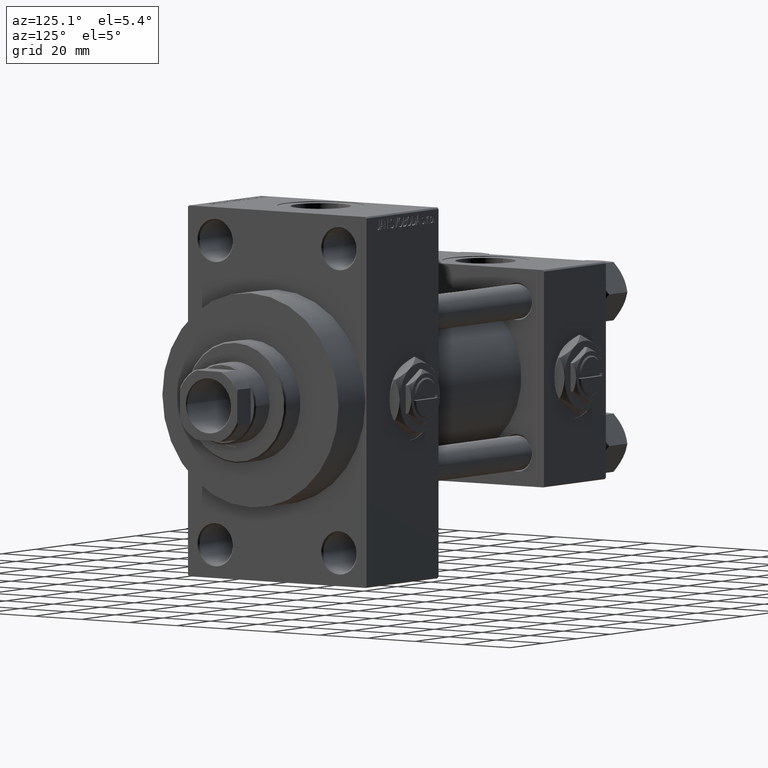
[diagram: clean part render]
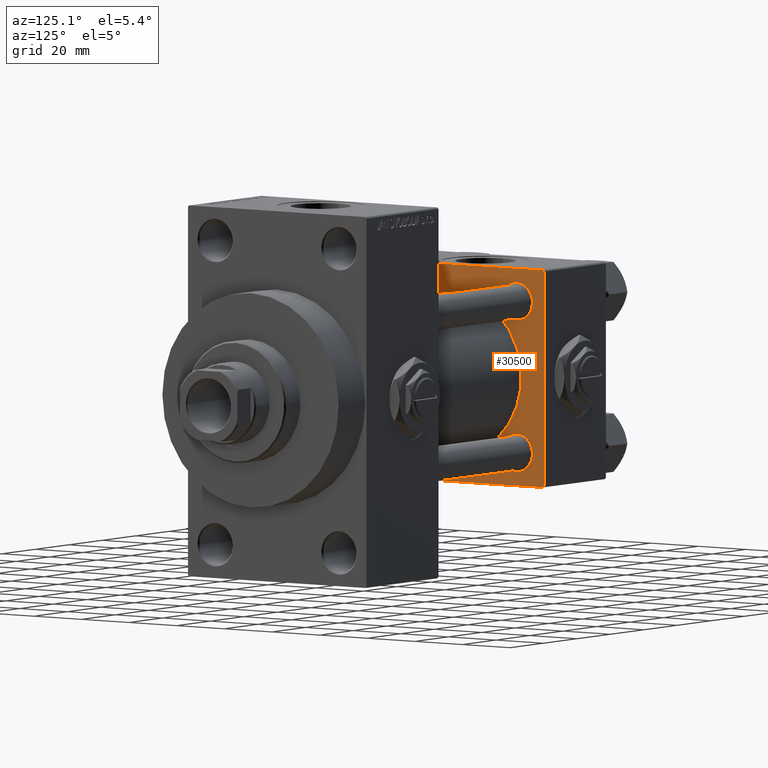
[diagram: same view with one face highlighted and labeled with its STEP entity id]
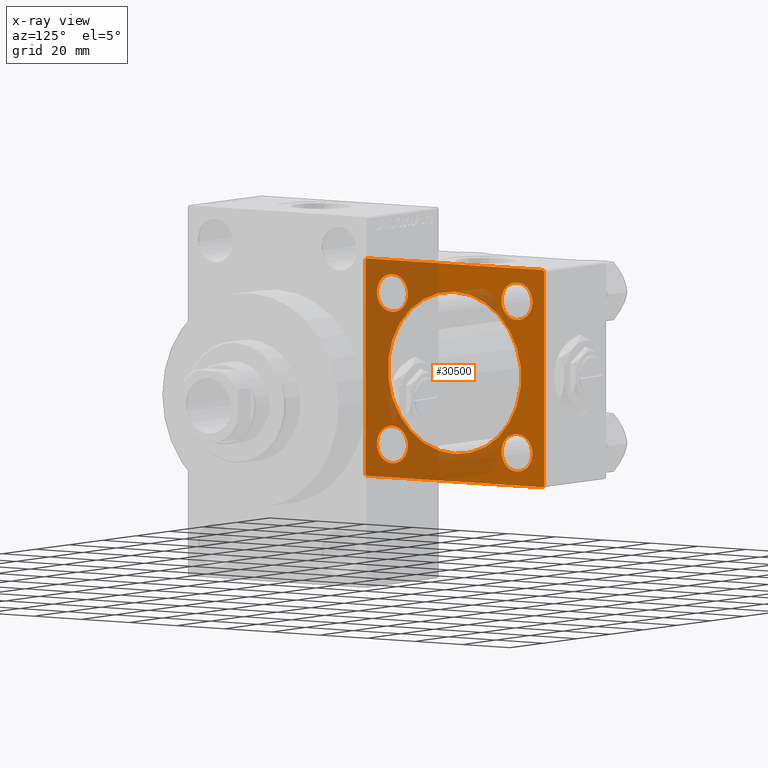
[diagram: x-ray of the same camera — body ghosted, the highlighted face saturated]
A machine part, auxiliary view. The second image highlights one B-rep face of the part: STEP entity #30500.
The next image is the same camera in x-ray: the body ghosted, the highlighted face saturated — about 55% of this face is hidden behind the body in this view.
In plain terms, the highlighted planar face has unit normal (-1, 0, 0).
Its self-contained STEP definition (entity closure, byte-faithful):
#254 = EDGE_CURVE ( 'NONE', #46438, #34888, #38169, .T. ) ;
#601 = DIRECTION ( 'NONE',  ( 0.000000000000000000, 0.000000000000000000, 1.000000000000000000 ) ) ;
#1524 = AXIS2_PLACEMENT_3D ( 'NONE', #34920, #11728, #30686 ) ;
#1665 = CARTESIAN_POINT ( 'NONE',  ( 37.00000000000000000, 37.49999999999999289, -36.99999999999998579 ) ) ;
#1704 = ORIENTED_EDGE ( 'NONE', *, *, #13750, .T. ) ;
#2024 = AXIS2_PLACEMENT_3D ( 'NONE', #26713, #22973, #26958 ) ;
#2069 = DIRECTION ( 'NONE',  ( -1.000000000000000000, 0.000000000000000000, -0.000000000000000000 ) ) ;
#2194 = CIRCLE ( 'NONE', #19733, 6.500000000000002665 ) ;
#2397 = EDGE_CURVE ( 'NONE', #4331, #28512, #20771, .T. ) ;
#2564 = CARTESIAN_POINT ( 'NONE',  ( 37.00000000000000000, 26.14999999999999858, 32.65000000000001279 ) ) ;
#2976 = VECTOR ( 'NONE', #47858, 1000.000000000000000 ) ;
#3983 = VERTEX_POINT ( 'NONE', #22808 ) ;
#4331 = VERTEX_POINT ( 'NONE', #46150 ) ;
#4739 = DIRECTION ( 'NONE',  ( 0.000000000000000000, 0.000000000000000000, 1.000000000000000000 ) ) ;
#4988 = CARTESIAN_POINT ( 'NONE',  ( 37.00000000000000000, 36.99999999999997868, -37.50000000000000000 ) ) ;
#5083 = CARTESIAN_POINT ( 'NONE',  ( 37.00000000000000000, 26.14999999999999858, 19.64999999999999858 ) ) ;
#5646 = AXIS2_PLACEMENT_3D ( 'NONE', #31441, #11744, #4739 ) ;
#5773 = VERTEX_POINT ( 'NONE', #8104 ) ;
#5812 = CARTESIAN_POINT ( 'NONE',  ( 37.00000000000000000, -26.14999999999999147, 26.15000000000000924 ) ) ;
#5977 = CIRCLE ( 'NONE', #2024, 6.500000000000002665 ) ;
#6157 = ORIENTED_EDGE ( 'NONE', *, *, #21304, .T. ) ;
#6958 = VECTOR ( 'NONE', #9824, 1000.000000000000114 ) ;
#7467 = VERTEX_POINT ( 'NONE', #17833 ) ;
#7866 = AXIS2_PLACEMENT_3D ( 'NONE', #46010, #23599, #15622 ) ;
#8049 = DIRECTION ( 'NONE',  ( -0.000000000000000000, 0.000000000000000000, 1.000000000000000000 ) ) ;
#8104 = CARTESIAN_POINT ( 'NONE',  ( 37.00000000000000000, 37.49999999999999289, 37.00000000000000000 ) ) ;
#8339 = EDGE_CURVE ( 'NONE', #25199, #24278, #17465, .T. ) ;
#8554 = EDGE_CURVE ( 'NONE', #3983, #32130, #26888, .T. ) ;
#9064 = DIRECTION ( 'NONE',  ( 0.000000000000000000, 0.000000000000000000, 1.000000000000000000 ) ) ;
#9313 = CARTESIAN_POINT ( 'NONE',  ( 37.00000000000000000, -37.00000000000002132, -37.50000000000000711 ) ) ;
#9381 = AXIS2_PLACEMENT_3D ( 'NONE', #42935, #47411, #13277 ) ;
#9572 = CARTESIAN_POINT ( 'NONE',  ( 37.00000000000000000, 36.99999999999999289, 37.50000000000000000 ) ) ;
#9824 = DIRECTION ( 'NONE',  ( 0.000000000000000000, -0.7071067811865474617, 0.7071067811865474617 ) ) ;
#10074 = VECTOR ( 'NONE', #11050, 1000.000000000000000 ) ;
#10298 = ORIENTED_EDGE ( 'NONE', *, *, #38020, .T. ) ;
#10505 = CARTESIAN_POINT ( 'NONE',  ( 37.00000000000000711, 8.269258236473784371E-16, -28.00000000000000000 ) ) ;
#10587 = CARTESIAN_POINT ( 'NONE',  ( 37.00000000000000000, 26.14999999999999858, -26.15000000000000213 ) ) ;
#10861 = CARTESIAN_POINT ( 'NONE',  ( 37.00000000000000000, -37.50000000000000711, 36.99999999999999289 ) ) ;
#10950 = VECTOR ( 'NONE', #24522, 1000.000000000000000 ) ;
#11050 = DIRECTION ( 'NONE',  ( 0.000000000000000000, 9.251858538542971581E-17, -1.000000000000000000 ) ) ;
#11121 = ORIENTED_EDGE ( 'NONE', *, *, #21208, .T. ) ;
#11575 = CARTESIAN_POINT ( 'NONE',  ( 37.00000000000000000, -26.14999999999999147, 26.15000000000000924 ) ) ;
#11728 = DIRECTION ( 'NONE',  ( -1.000000000000000000, 0.000000000000000000, -0.000000000000000000 ) ) ;
#11744 = DIRECTION ( 'NONE',  ( 1.000000000000000000, -0.000000000000000000, 0.000000000000000000 ) ) ;
#12530 = DIRECTION ( 'NONE',  ( -1.000000000000000000, 0.000000000000000000, -0.000000000000000000 ) ) ;
#12670 = CIRCLE ( 'NONE', #1524, 6.500000000000008882 ) ;
#12805 = AXIS2_PLACEMENT_3D ( 'NONE', #5812, #2069, #9064 ) ;
#13183 = VERTEX_POINT ( 'NONE', #18938 ) ;
#13277 = DIRECTION ( 'NONE',  ( 0.000000000000000000, 0.000000000000000000, 1.000000000000000000 ) ) ;
#13750 = EDGE_CURVE ( 'NONE', #28512, #4331, #40914, .T. ) ;
#14209 = EDGE_CURVE ( 'NONE', #25199, #46200, #35573, .T. ) ;
#14671 = VECTOR ( 'NONE', #28598, 1000.000000000000114 ) ;
#14987 = VECTOR ( 'NONE', #33177, 1000.000000000000000 ) ;
#15622 = DIRECTION ( 'NONE',  ( 0.000000000000000000, 0.000000000000000000, 1.000000000000000000 ) ) ;
#15777 = FACE_BOUND ( 'NONE', #28850, .T. ) ;
#16591 = EDGE_CURVE ( 'NONE', #24329, #13183, #5977, .T. ) ;
#17465 = LINE ( 'NONE', #36403, #2976 ) ;
#17544 = ORIENTED_EDGE ( 'NONE', *, *, #29374, .T. ) ;
#17833 = CARTESIAN_POINT ( 'NONE',  ( 37.00000000000000000, -37.50000000000000000, -37.00000000000003553 ) ) ;
#17853 = AXIS2_PLACEMENT_3D ( 'NONE', #11575, #37770, #601 ) ;
#17966 = CARTESIAN_POINT ( 'NONE',  ( 37.00000000000000000, 37.49999999999999289, 37.50000000000000000 ) ) ;
#18754 = ORIENTED_EDGE ( 'NONE', *, *, #40864, .T. ) ;
#18938 = CARTESIAN_POINT ( 'NONE',  ( 37.00000000000000000, 26.14999999999999858, -32.65000000000000568 ) ) ;
#19030 = FACE_BOUND ( 'NONE', #25505, .T. ) ;
#19188 = ORIENTED_EDGE ( 'NONE', *, *, #8339, .F. ) ;
#19283 = FACE_BOUND ( 'NONE', #20104, .T. ) ;
#19344 = EDGE_CURVE ( 'NONE', #23357, #7467, #30496, .T. ) ;
#19733 = AXIS2_PLACEMENT_3D ( 'NONE', #10587, #40497, #22291 ) ;
#20064 = CARTESIAN_POINT ( 'NONE',  ( 37.00000000000000000, -37.00000000000000711, 37.49999999999999289 ) ) ;
#20103 = EDGE_LOOP ( 'NONE', ( #10298, #42705 ) ) ;
#20104 = EDGE_LOOP ( 'NONE', ( #18754, #26157 ) ) ;
#20506 = CARTESIAN_POINT ( 'NONE',  ( 37.00000000000000000, 26.14999999999999858, 26.15000000000000213 ) ) ;
#20771 = CIRCLE ( 'NONE', #12805, 6.499999999999981348 ) ;
#20896 = DIRECTION ( 'NONE',  ( -1.000000000000000000, 0.000000000000000000, -0.000000000000000000 ) ) ;
#21208 = EDGE_CURVE ( 'NONE', #7467, #24278, #42718, .T. ) ;
#21304 = EDGE_CURVE ( 'NONE', #5773, #44537, #47694, .T. ) ;
#22166 = VERTEX_POINT ( 'NONE', #20064 ) ;
#22291 = DIRECTION ( 'NONE',  ( 0.000000000000000000, 0.000000000000000000, 1.000000000000000000 ) ) ;
#22362 = EDGE_CURVE ( 'NONE', #22166, #23357, #25272, .T. ) ;
#22531 = FACE_BOUND ( 'NONE', #20103, .T. ) ;
#22808 = CARTESIAN_POINT ( 'NONE',  ( 37.00000000000000000, -26.14999999999999147, -19.65000000000003411 ) ) ;
#22904 = VECTOR ( 'NONE', #40473, 1000.000000000000114 ) ;
#22973 = DIRECTION ( 'NONE',  ( -1.000000000000000000, 0.000000000000000000, -0.000000000000000000 ) ) ;
#23357 = VERTEX_POINT ( 'NONE', #10861 ) ;
#23599 = DIRECTION ( 'NONE',  ( 1.000000000000000000, -0.000000000000000000, 0.000000000000000000 ) ) ;
#24008 = DIRECTION ( 'NONE',  ( 0.000000000000000000, 0.000000000000000000, 1.000000000000000000 ) ) ;
#24278 = VERTEX_POINT ( 'NONE', #34194 ) ;
#24329 = VERTEX_POINT ( 'NONE', #47112 ) ;
#24500 = CIRCLE ( 'NONE', #9381, 6.499999999999974243 ) ;
#24522 = DIRECTION ( 'NONE',  ( 0.000000000000000000, 0.7071067811865524577, -0.7071067811865426878 ) ) ;
#25199 = VERTEX_POINT ( 'NONE', #4988 ) ;
#25272 = LINE ( 'NONE', #48689, #22904 ) ;
#25505 = EDGE_LOOP ( 'NONE', ( #32530, #27243 ) ) ;
#25911 = CARTESIAN_POINT ( 'NONE',  ( 37.00000000000000000, -26.14999999999999147, 19.65000000000002700 ) ) ;
#26114 = VERTEX_POINT ( 'NONE', #38247 ) ;
#26157 = ORIENTED_EDGE ( 'NONE', *, *, #254, .T. ) ;
#26341 = EDGE_LOOP ( 'NONE', ( #1704, #35487 ) ) ;
#26713 = CARTESIAN_POINT ( 'NONE',  ( 37.00000000000000000, 26.14999999999999858, -26.15000000000000213 ) ) ;
#26740 = CARTESIAN_POINT ( 'NONE',  ( 37.00000000000000000, -37.50000000000000711, 37.49999999999999289 ) ) ;
#26888 = CIRCLE ( 'NONE', #41219, 6.499999999999974243 ) ;
#26890 = ORIENTED_EDGE ( 'NONE', *, *, #16591, .T. ) ;
#26958 = DIRECTION ( 'NONE',  ( 0.000000000000000000, 0.000000000000000000, 1.000000000000000000 ) ) ;
#26997 = CARTESIAN_POINT ( 'NONE',  ( 37.00000000000000000, 0.000000000000000000, 0.000000000000000000 ) ) ;
#27243 = ORIENTED_EDGE ( 'NONE', *, *, #45523, .F. ) ;
#27254 = FACE_OUTER_BOUND ( 'NONE', #41491, .T. ) ;
#27272 = ORIENTED_EDGE ( 'NONE', *, *, #38845, .F. ) ;
#28512 = VERTEX_POINT ( 'NONE', #25911 ) ;
#28598 = DIRECTION ( 'NONE',  ( -0.000000000000000000, 0.7071067811865474617, 0.7071067811865474617 ) ) ;
#28850 = EDGE_LOOP ( 'NONE', ( #30739, #26890 ) ) ;
#29374 = EDGE_CURVE ( 'NONE', #44537, #22166, #36415, .T. ) ;
#29434 = AXIS2_PLACEMENT_3D ( 'NONE', #20506, #12530, #24008 ) ;
#29820 = EDGE_CURVE ( 'NONE', #26114, #34663, #34959, .T. ) ;
#30496 = LINE ( 'NONE', #26740, #10074 ) ;
#30500 = ADVANCED_FACE ( 'NONE', ( #22531, #15777, #45911, #19283, #19030, #27254 ), #37731, .F. ) ;
#30686 = DIRECTION ( 'NONE',  ( 0.000000000000000000, 0.000000000000000000, 1.000000000000000000 ) ) ;
#30739 = ORIENTED_EDGE ( 'NONE', *, *, #37831, .T. ) ;
#31015 = AXIS2_PLACEMENT_3D ( 'NONE', #26997, #42186, #8049 ) ;
#31441 = CARTESIAN_POINT ( 'NONE',  ( 37.00000000000000711, -2.602085213965210642E-15, 0.000000000000000000 ) ) ;
#32130 = VERTEX_POINT ( 'NONE', #33830 ) ;
#32530 = ORIENTED_EDGE ( 'NONE', *, *, #29820, .F. ) ;
#32652 = LINE ( 'NONE', #33137, #49191 ) ;
#33137 = CARTESIAN_POINT ( 'NONE',  ( 37.00000000000000000, 37.49999999999999289, 37.50000000000000000 ) ) ;
#33177 = DIRECTION ( 'NONE',  ( 0.000000000000000000, -1.000000000000000000, -9.251858538542971581E-17 ) ) ;
#33830 = CARTESIAN_POINT ( 'NONE',  ( 37.00000000000000000, -26.14999999999999147, -32.64999999999998437 ) ) ;
#34194 = CARTESIAN_POINT ( 'NONE',  ( 37.00000000000000000, -37.00000000000002132, -37.50000000000000711 ) ) ;
#34663 = VERTEX_POINT ( 'NONE', #10505 ) ;
#34888 = VERTEX_POINT ( 'NONE', #5083 ) ;
#34920 = CARTESIAN_POINT ( 'NONE',  ( 37.00000000000000000, 26.14999999999999858, 26.15000000000000213 ) ) ;
#34959 = CIRCLE ( 'NONE', #7866, 28.00000000000000000 ) ;
#35487 = ORIENTED_EDGE ( 'NONE', *, *, #2397, .T. ) ;
#35573 = LINE ( 'NONE', #1665, #14671 ) ;
#35714 = ORIENTED_EDGE ( 'NONE', *, *, #19344, .T. ) ;
#35908 = CIRCLE ( 'NONE', #5646, 28.00000000000000000 ) ;
#36403 = CARTESIAN_POINT ( 'NONE',  ( 37.00000000000000000, 37.49999999999999289, -37.50000000000000000 ) ) ;
#36415 = LINE ( 'NONE', #17966, #14987 ) ;
#36624 = DIRECTION ( 'NONE',  ( 0.000000000000000000, 0.000000000000000000, -1.000000000000000000 ) ) ;
#36783 = CARTESIAN_POINT ( 'NONE',  ( 37.00000000000000000, 37.49999999999999289, -36.99999999999998579 ) ) ;
#37731 = PLANE ( 'NONE',  #31015 ) ;
#37770 = DIRECTION ( 'NONE',  ( -1.000000000000000000, 0.000000000000000000, -0.000000000000000000 ) ) ;
#37831 = EDGE_CURVE ( 'NONE', #13183, #24329, #2194, .T. ) ;
#38020 = EDGE_CURVE ( 'NONE', #32130, #3983, #24500, .T. ) ;
#38169 = CIRCLE ( 'NONE', #29434, 6.500000000000008882 ) ;
#38247 = CARTESIAN_POINT ( 'NONE',  ( 37.00000000000000711, -2.602085213965210642E-15, 28.00000000000000000 ) ) ;
#38845 = EDGE_CURVE ( 'NONE', #5773, #46200, #32652, .T. ) ;
#39579 = DIRECTION ( 'NONE',  ( 0.000000000000000000, 0.000000000000000000, 1.000000000000000000 ) ) ;
#40473 = DIRECTION ( 'NONE',  ( -0.000000000000000000, -0.7071067811865474617, -0.7071067811865474617 ) ) ;
#40497 = DIRECTION ( 'NONE',  ( -1.000000000000000000, 0.000000000000000000, -0.000000000000000000 ) ) ;
#40753 = ORIENTED_EDGE ( 'NONE', *, *, #14209, .T. ) ;
#40864 = EDGE_CURVE ( 'NONE', #34888, #46438, #12670, .T. ) ;
#40914 = CIRCLE ( 'NONE', #17853, 6.499999999999981348 ) ;
#41219 = AXIS2_PLACEMENT_3D ( 'NONE', #43799, #20896, #39579 ) ;
#41491 = EDGE_LOOP ( 'NONE', ( #19188, #40753, #27272, #6157, #17544, #43679, #35714, #11121 ) ) ;
#42186 = DIRECTION ( 'NONE',  ( -1.000000000000000000, 0.000000000000000000, -0.000000000000000000 ) ) ;
#42624 = CARTESIAN_POINT ( 'NONE',  ( 37.00000000000000000, 36.99999999999999289, 37.50000000000000000 ) ) ;
#42705 = ORIENTED_EDGE ( 'NONE', *, *, #8554, .T. ) ;
#42718 = LINE ( 'NONE', #9313, #10950 ) ;
#42935 = CARTESIAN_POINT ( 'NONE',  ( 37.00000000000000000, -26.14999999999999147, -26.15000000000000924 ) ) ;
#43679 = ORIENTED_EDGE ( 'NONE', *, *, #22362, .T. ) ;
#43799 = CARTESIAN_POINT ( 'NONE',  ( 37.00000000000000000, -26.14999999999999147, -26.15000000000000924 ) ) ;
#44537 = VERTEX_POINT ( 'NONE', #42624 ) ;
#45523 = EDGE_CURVE ( 'NONE', #34663, #26114, #35908, .T. ) ;
#45911 = FACE_BOUND ( 'NONE', #26341, .T. ) ;
#46010 = CARTESIAN_POINT ( 'NONE',  ( 37.00000000000000711, -2.602085213965210642E-15, 0.000000000000000000 ) ) ;
#46150 = CARTESIAN_POINT ( 'NONE',  ( 37.00000000000000000, -26.14999999999999147, 32.64999999999999147 ) ) ;
#46200 = VERTEX_POINT ( 'NONE', #36783 ) ;
#46438 = VERTEX_POINT ( 'NONE', #2564 ) ;
#47112 = CARTESIAN_POINT ( 'NONE',  ( 37.00000000000000000, 26.14999999999999858, -19.65000000000000213 ) ) ;
#47411 = DIRECTION ( 'NONE',  ( -1.000000000000000000, 0.000000000000000000, -0.000000000000000000 ) ) ;
#47694 = LINE ( 'NONE', #9572, #6958 ) ;
#47858 = DIRECTION ( 'NONE',  ( 0.000000000000000000, -1.000000000000000000, -9.251858538542972814E-17 ) ) ;
#48689 = CARTESIAN_POINT ( 'NONE',  ( 37.00000000000000000, -37.50000000000000711, 36.99999999999999289 ) ) ;
#49191 = VECTOR ( 'NONE', #36624, 1000.000000000000000 ) ;